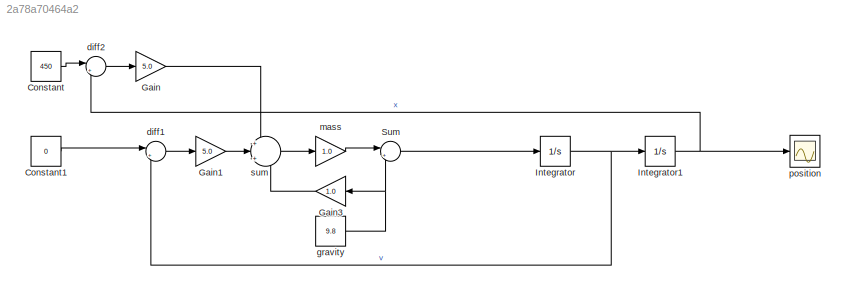
MODEL slx_2a78a70464a2
KIND model
CONFIG AbsTol = auto
CONFIG EnableMultiTasking = off
CONFIG FixedStep = auto
CONFIG MaxStep = auto
CONFIG MinStep = auto
CONFIG RelTol = 1e-3
CONFIG SampleTimeConstraint = Unconstrained
CONFIG Solver = VariableStepAuto
CONFIG SolverName = VariableStepAuto
CONFIG StartTime = 0.0
CONFIG StopTime = 10.0
BLOCK [Constant] Constant
  Value = 450
BLOCK [Constant] Constant1
  Value = 0
BLOCK [Gain] Gain
  Gain = 5.0
BLOCK [Gain] Gain1
  Gain = 5.0
BLOCK [Gain] Gain3
  Gain = 1.0
BLOCK [Integrator] Integrator
  Ports = [1, 1]
BLOCK [Integrator] Integrator1
  InitialCondition = 500
  Ports = [1, 1]
BLOCK [Sum] Sum
  Inputs = |+-
  Ports = [2, 1]
BLOCK [Sum] diff1
  Inputs = |+-
  Ports = [2, 1]
BLOCK [Sum] diff2
  Inputs = |+-
  Ports = [2, 1]
BLOCK [Constant] gravity
  Value = 9.8
BLOCK [Gain] mass
  Gain = 1.0
BLOCK [Scope] position
  Floating = off
  NumInputPorts = 1
  Ports = [1]
  ScopeSpecificationString = Simulink.scopes.TimeScopeBlockCfg('CurrentConfiguration', extmgr.ConfigurationSet(extmgr.Configuration('Core','General UI',true),extmgr.Configuration('Core','Source UI',true),extmgr.Configuration('Sources','WiredSimulink',true),extmgr.Configuration('Visuals','Time Domain',true,'SerializedDisplays',{struct('MinYLimReal','443.75009','MaxYLimReal','506.24999','YLabelReal','','MinYLimMag','443.75009',...<+1390ch>
BLOCK [Sum] sum
  Inputs = +|+|+
  Ports = [3, 1]
LINE Constant1:1 -> diff1:1
LINE Constant:1 -> diff2:1
LINE Gain1:1 -> sum:2
LINE Gain3:1 -> sum:3
LINE Gain:1 -> sum:1
NET Integrator1:1 -> diff2:2, position:1
NET Integrator:1 -> Integrator1:1, diff1:2
LINE Sum:1 -> Integrator:1
LINE diff1:1 -> Gain1:1
LINE diff2:1 -> Gain:1
NET gravity:1 -> Gain3:1, Sum:2
LINE mass:1 -> Sum:1
LINE sum:1 -> mass:1
note: NET lines group one-source signal fan-out (src -> all destinations, sorted); 1:1 wires keep LINE
